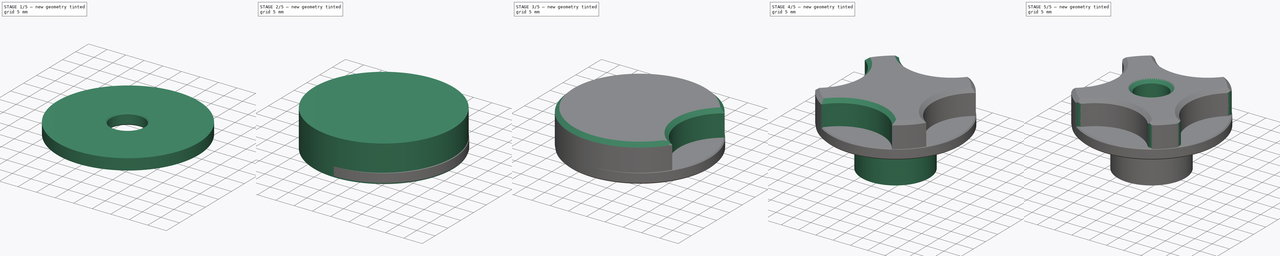
[diagram: build sequence overview — one tinted view per stage of 5, left to right]
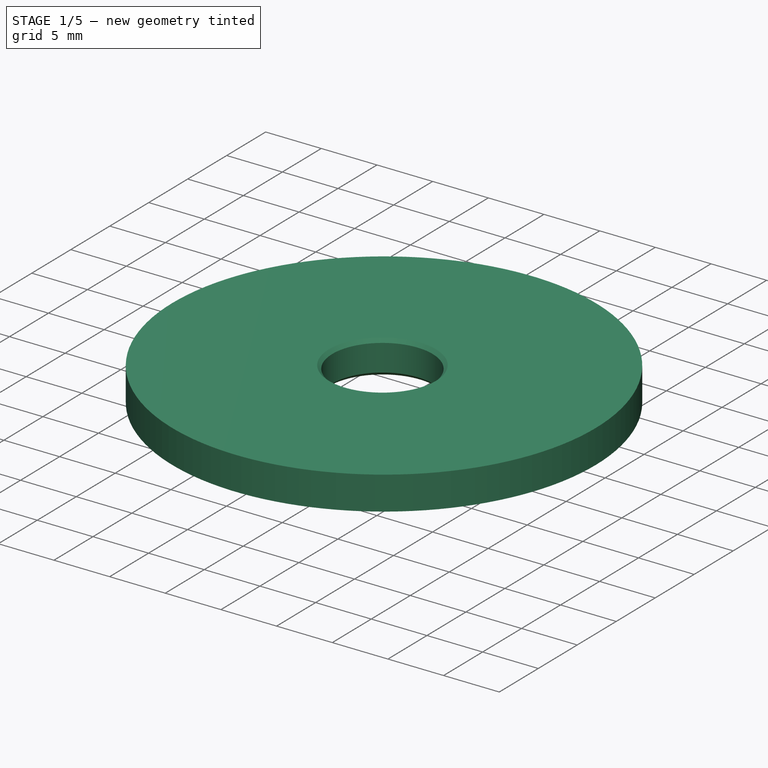
[diagram: stage 1 of 5 — iso view after this stage's code; geometry added in this stage tinted green]
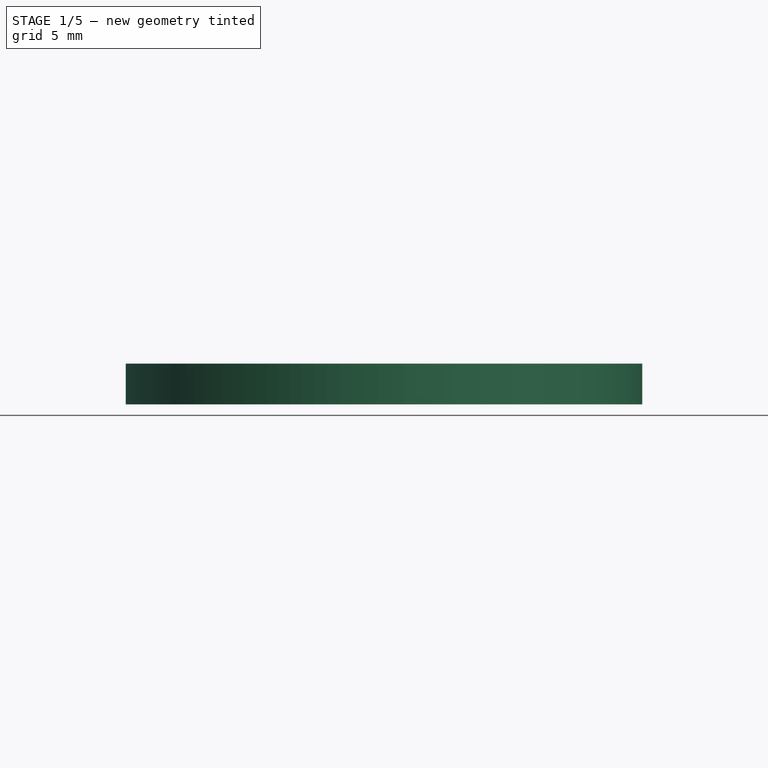
[diagram: stage 1 of 5 — front view after this stage's code; geometry added in this stage tinted green]
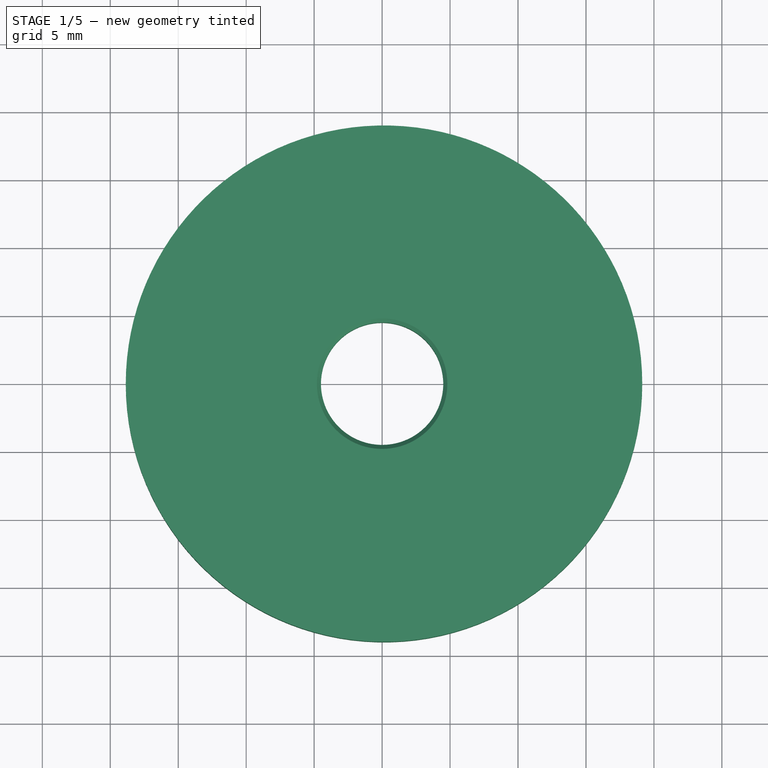
[diagram: stage 1 of 5 — top view after this stage's code; geometry added in this stage tinted green]
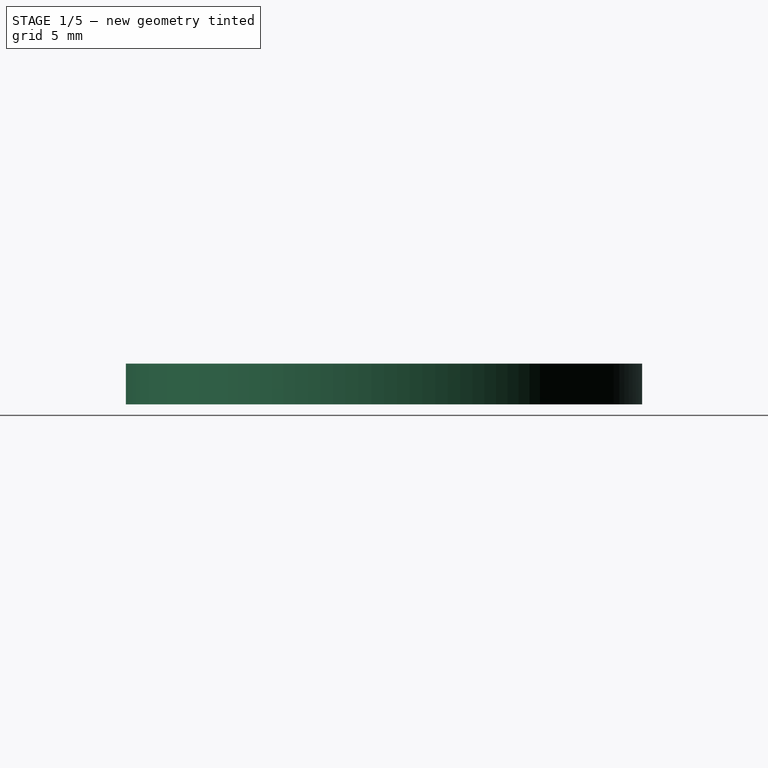
[diagram: stage 1 of 5 — right view after this stage's code; geometry added in this stage tinted green]
FCSTD DOCUMENT  (FreeCAD 0.21R33383 (Git))
Label: m8 - knob
License: All rights reserved
LicenseURL: https://en.wikipedia.org/wiki/All_rights_reserved
objects: Sketcher::SketchObject×8, PartDesign::Chamfer×6, PartDesign::Pocket×5, PartDesign::Pad×3, PartDesign::Body×2, PartDesign::PolarPattern×1, PartDesign::Fillet×1
note: 41 computed .brp shape members not serialized (recipe doc carries the construction recipe); baked Part::Feature solids carry a one-line shape summary decoded from their .brp

FEATURE [PartDesign::Body] Body015  label="Knob"
  Group = -> [Sketch071,Pad026,Chamfer033,Chamfer032,Sketch072,Pocket044,Chamfer034,PolarPattern002,Sketch073,Pad027,Sketch074,Pocket045,Sketch075,Pocket046,Chamfer035,Fillet008]
  Origin = -> Origin015
  Tip = -> Fillet008
FEATURE [Sketcher::SketchObject] Sketch068
  FullyConstrained = false
  MapMode = 5
  Support = -> [XY_Plane014]
  sketch-geometry (1):
    g0: Circle CenterX=0.140173 CenterY=0 CenterZ=0 NormalX=0 NormalY=0 NormalZ=1 AngleXU=0 Radius=19
  constraints (2):
    c: PointOnObject(g0,g-1)
    c: Diameter(g0) = 38
FEATURE [PartDesign::Pad] Pad025
  Direction = (1,1,1)
  Length = 3
  Length2 = 100
  Profile = -> Sketch068
  Type = 0
FEATURE [Sketcher::SketchObject] Sketch069
  FullyConstrained = true
  MapMode = 5
  Placement = pos=(0,0,0) rot=(1,0,0;3.14159rad)
  Support = -> [Pad025]
  sketch-geometry (1):
    g0: Circle CenterX=0 CenterY=0 CenterZ=0 NormalX=0 NormalY=0 NormalZ=1 AngleXU=0 Radius=4.5
  constraints (2):
    c: Coincident(g0,g-1)
    c: Diameter(g0) = 9
FEATURE [PartDesign::Pocket] Pocket042
  BaseFeature = -> Pad025
  Direction = (1,1,1)
  Length = 5
  Length2 = 100
  Profile = -> Sketch069
  Type = 1
FEATURE [PartDesign::Chamfer] Chamfer029
  Angle = 45
  Base = -> Pocket042 [Edge4,Edge5]
  BaseFeature = -> Pocket042
  ChamferType = 0
  FlipDirection = false
  Size = 0.3
  Size2 = 1
  SupportTransform = false
  UseAllEdges = false
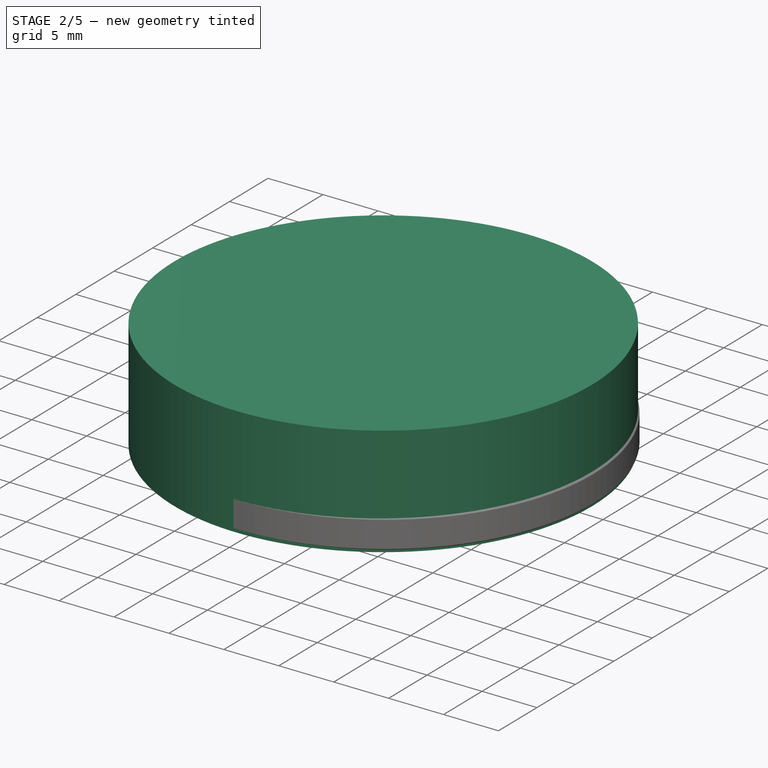
[diagram: stage 2 of 5 — iso view after this stage's code; geometry added in this stage tinted green]
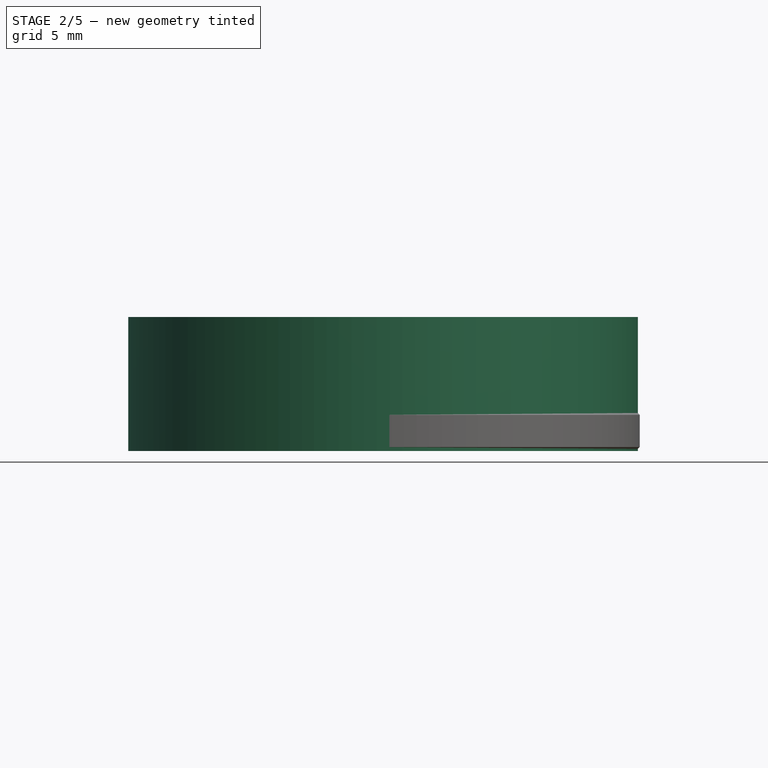
[diagram: stage 2 of 5 — front view after this stage's code; geometry added in this stage tinted green]
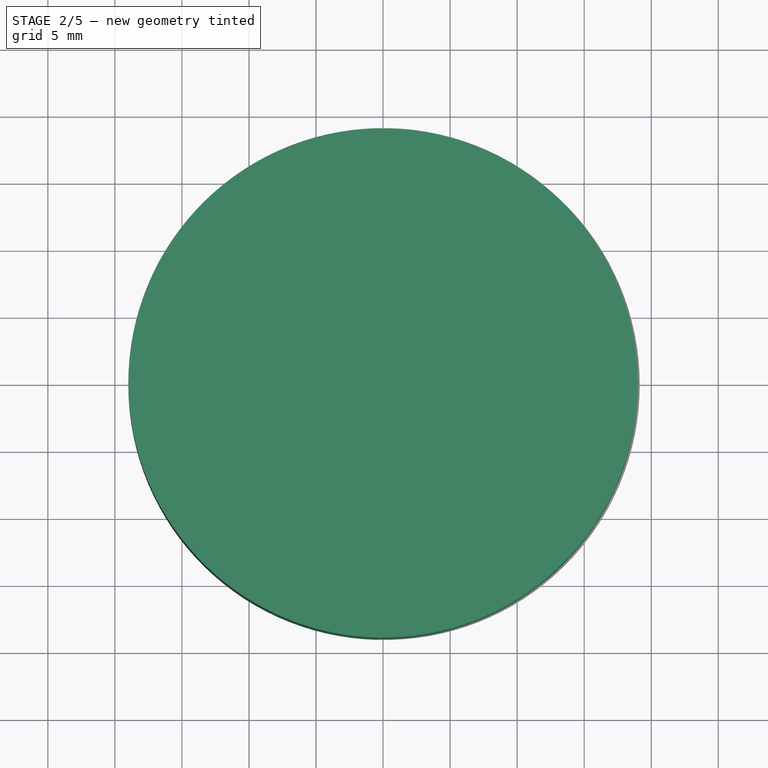
[diagram: stage 2 of 5 — top view after this stage's code; geometry added in this stage tinted green]
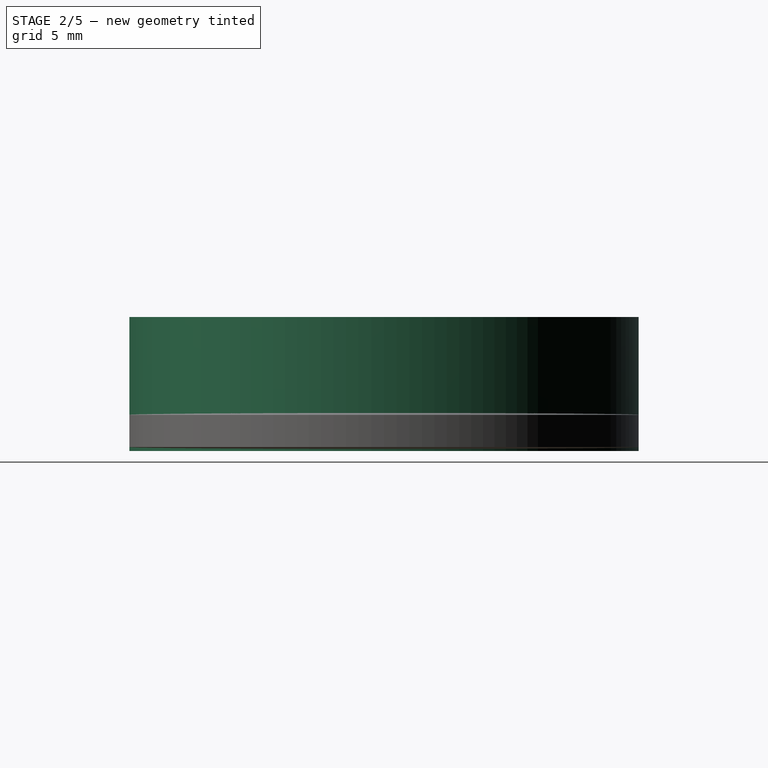
[diagram: stage 2 of 5 — right view after this stage's code; geometry added in this stage tinted green]
FEATURE [Sketcher::SketchObject] Sketch071
  FullyConstrained = true
  MapMode = 5
  Support = -> [XY_Plane015]
  sketch-geometry (1):
    g0: Circle CenterX=0 CenterY=0 CenterZ=0 NormalX=0 NormalY=0 NormalZ=1 AngleXU=0 Radius=19
  constraints (2):
    c: Coincident(g0,g-1)
    c: Diameter(g0) = 38
FEATURE [PartDesign::Pad] Pad026
  Direction = (1,1,1)
  Length = 10
  Length2 = 100
  Profile = -> Sketch071
  Type = 0
FEATURE [PartDesign::Chamfer] Chamfer030
  Angle = 45
  Base = -> Chamfer029 [Edge2,Edge6]
  BaseFeature = -> Chamfer029
  ChamferType = 0
  FlipDirection = false
  Size = 0.3
  Size2 = 1
  SupportTransform = false
  UseAllEdges = false
FEATURE [Sketcher::SketchObject] Sketch070
  FullyConstrained = true
  MapMode = 5
  Placement = pos=(0,0,3) rot=(0,0,1;0rad)
  Support = -> [Chamfer030]
  sketch-geometry (1):
    g0: Circle CenterX=0 CenterY=0 CenterZ=0 NormalX=0 NormalY=0 NormalZ=1 AngleXU=0 Radius=8.25
  constraints (2):
    c: Coincident(g0,g-1)
    c: Radius(g0) = 8.25
FEATURE [PartDesign::Pocket] Pocket043
  BaseFeature = -> Chamfer030
  Direction = (0,0,-1)
  Length = 1
  Length2 = 100
  Profile = -> Sketch070
  Type = 0
FEATURE [PartDesign::Body] Body014  label="Washer"
  Group = -> [Sketch068,Pad025,Sketch069,Pocket042,Chamfer029,Chamfer030,Sketch070,Pocket043]
  Origin = -> Origin014
  Tip = -> Pocket043
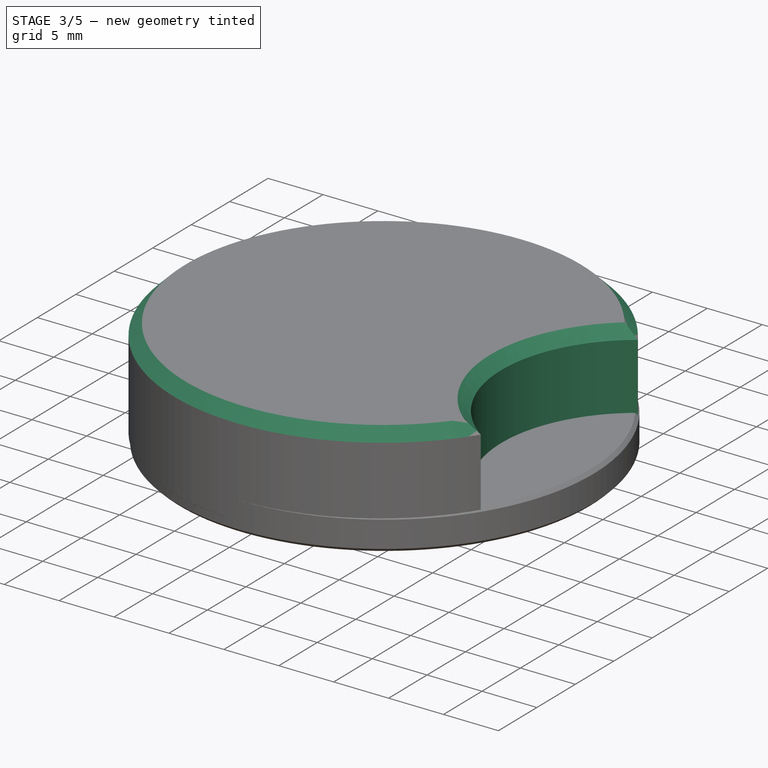
[diagram: stage 3 of 5 — iso view after this stage's code; geometry added in this stage tinted green]
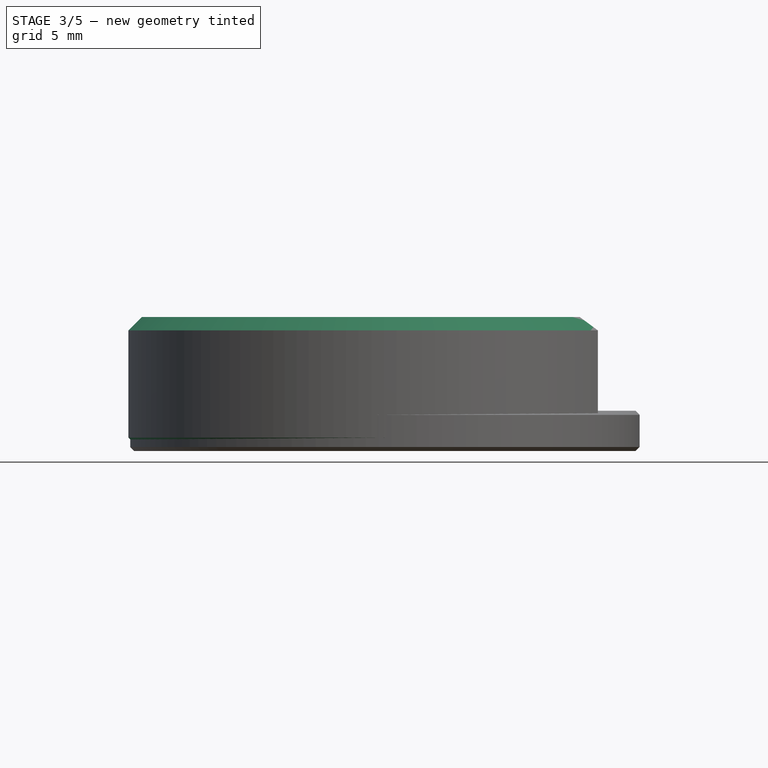
[diagram: stage 3 of 5 — front view after this stage's code; geometry added in this stage tinted green]
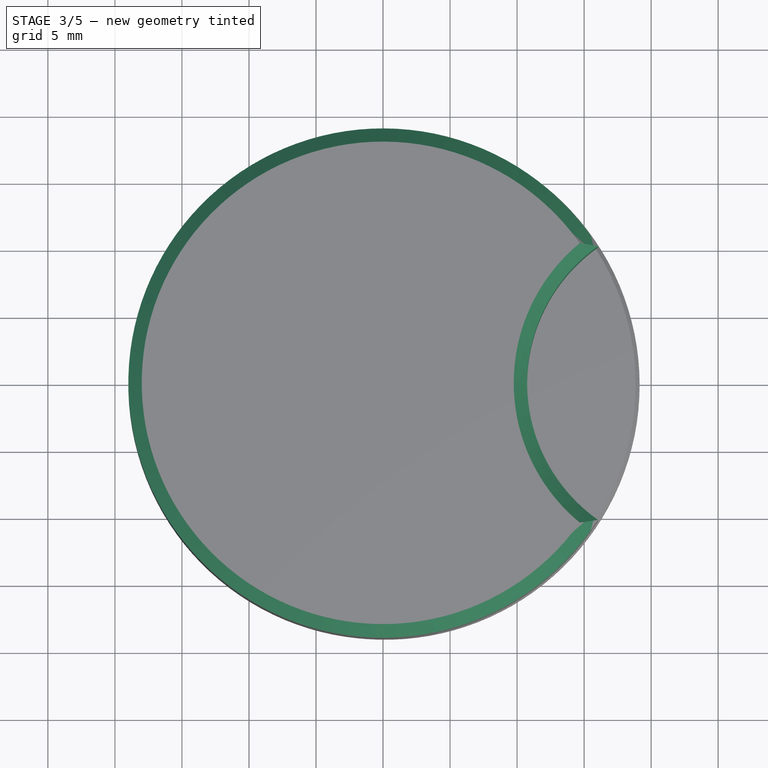
[diagram: stage 3 of 5 — top view after this stage's code; geometry added in this stage tinted green]
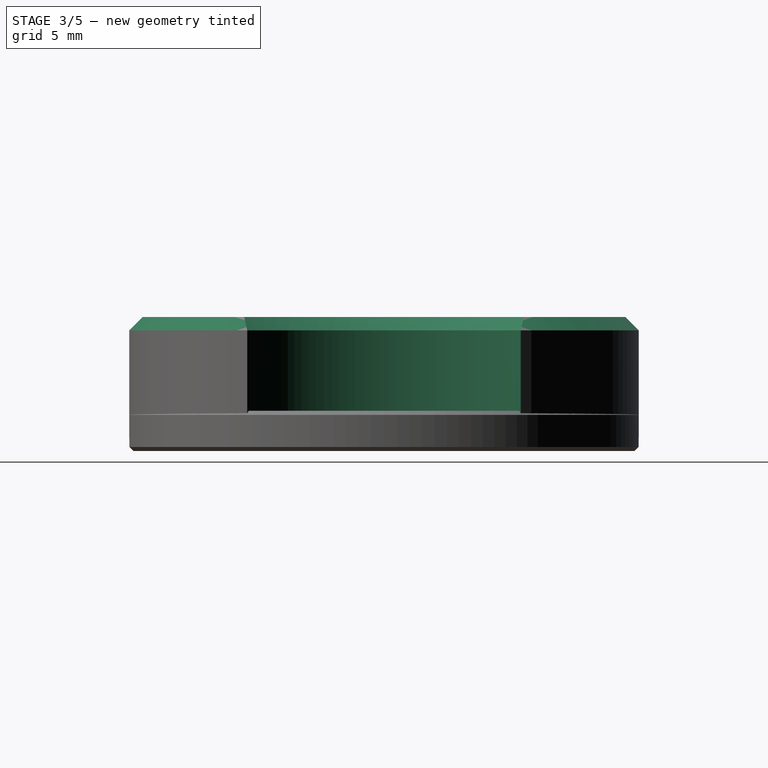
[diagram: stage 3 of 5 — right view after this stage's code; geometry added in this stage tinted green]
FEATURE [PartDesign::Chamfer] Chamfer033
  Angle = 45
  Base = -> Pad026 [Edge3]
  BaseFeature = -> Pad026
  ChamferType = 0
  FlipDirection = false
  Size = 1
  Size2 = 1
  SupportTransform = false
  UseAllEdges = false
FEATURE [PartDesign::Chamfer] Chamfer032
  Angle = 45
  Base = -> Chamfer033 [Edge3]
  BaseFeature = -> Chamfer033
  ChamferType = 0
  FlipDirection = false
  Size = 1
  Size2 = 1
  SupportTransform = false
  UseAllEdges = false
FEATURE [Sketcher::SketchObject] Sketch072
  ExternalGeometry = -> [Chamfer032]
  FullyConstrained = true
  MapMode = 5
  Support = -> [XY_Plane015]
  sketch-geometry (2):
    g0: LineSegment StartX=23.25 StartY=12.5 StartZ=0 EndX=23.25 EndY=-12.5 EndZ=0
    g1: ArcOfCircle CenterX=23.25 CenterY=-9e-16 CenterZ=0 NormalX=0 NormalY=0 NormalZ=1 AngleXU=0 Radius=12.5 StartAngle=1.5708 EndAngle=4.71239
  constraints (6):
    c: Perpendicular(g0,g1) = 1.5708
    c: Coincident(g1,g0)
    c: DistanceY(g0,g0) = 25
    c: Vertical(g0)
    c: DistanceY(g-1,g0) = 12.5
    c: DistanceX(g-1,g1) = 23.25
FEATURE [PartDesign::Pocket] Pocket044
  BaseFeature = -> Chamfer032
  Direction = (1,1,1)
  Length = 5
  Length2 = 100
  Profile = -> Sketch072
  Reversed = true
  Type = 1
FEATURE [PartDesign::Chamfer] Chamfer034
  Angle = 45
  Base = -> Pocket044 [Edge8,Edge10]
  BaseFeature = -> Pocket044
  ChamferType = 0
  FlipDirection = false
  Size = 1
  Size2 = 1
  SupportTransform = false
  UseAllEdges = false
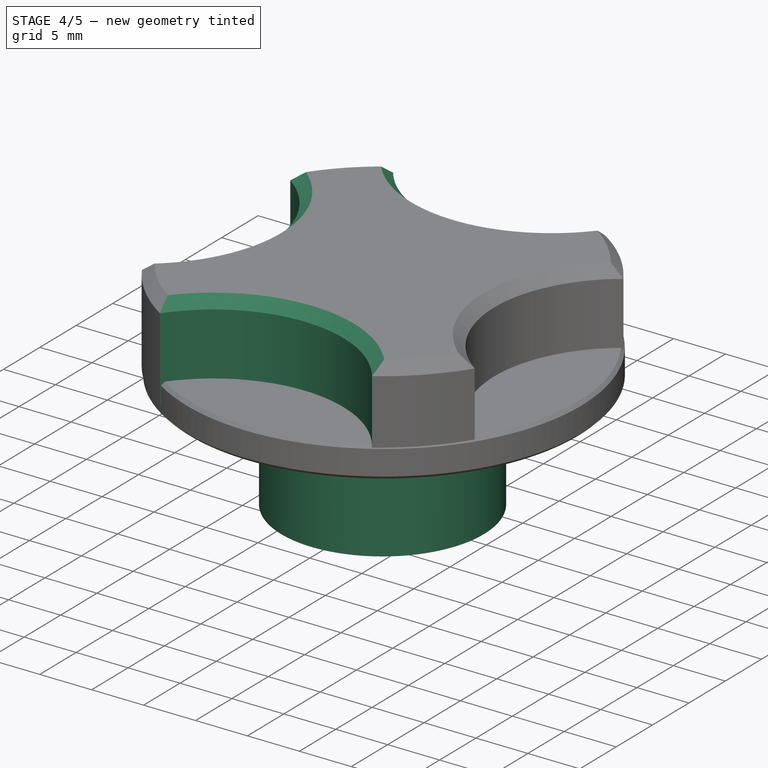
[diagram: stage 4 of 5 — iso view after this stage's code; geometry added in this stage tinted green]
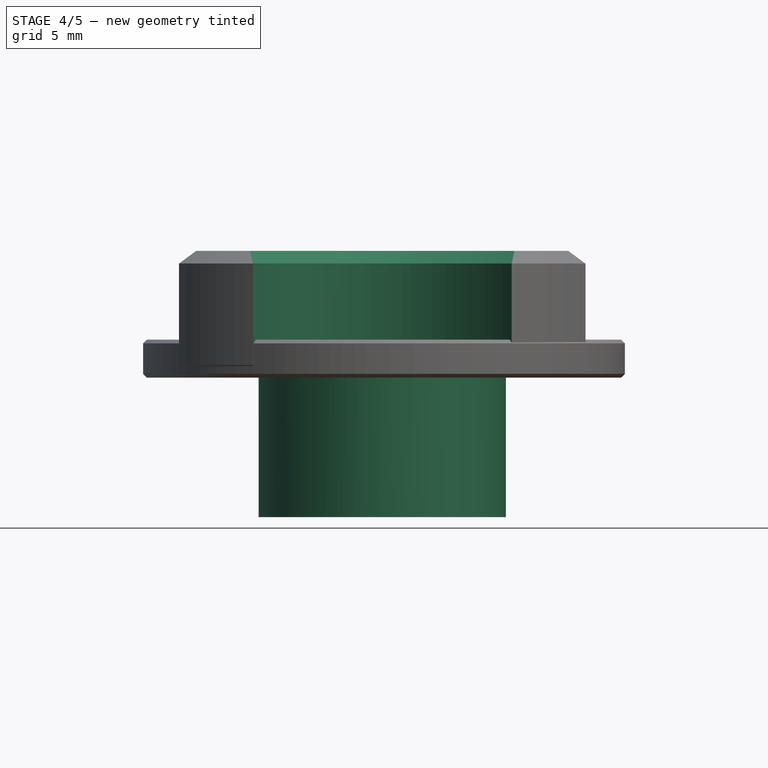
[diagram: stage 4 of 5 — front view after this stage's code; geometry added in this stage tinted green]
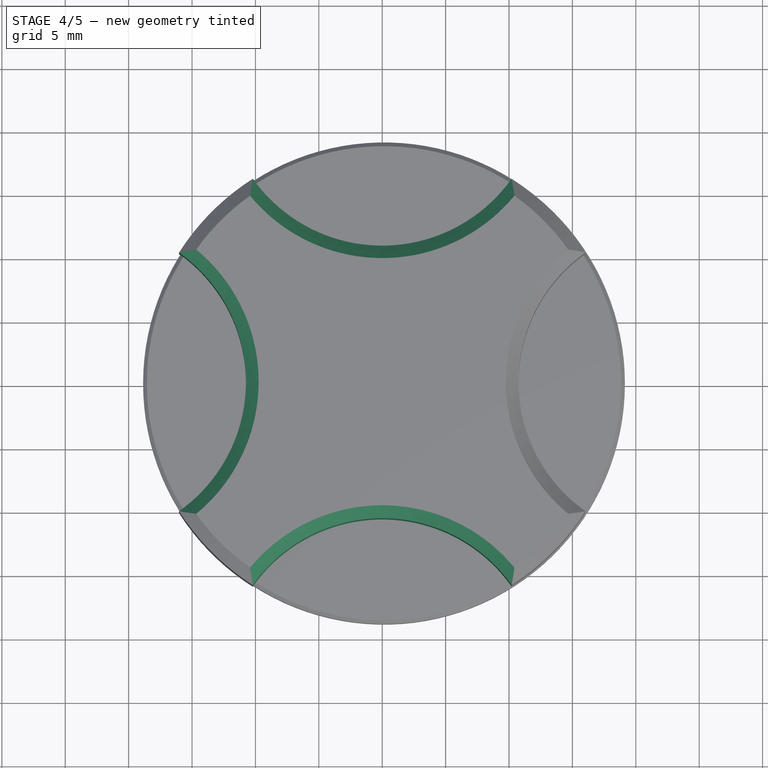
[diagram: stage 4 of 5 — top view after this stage's code; geometry added in this stage tinted green]
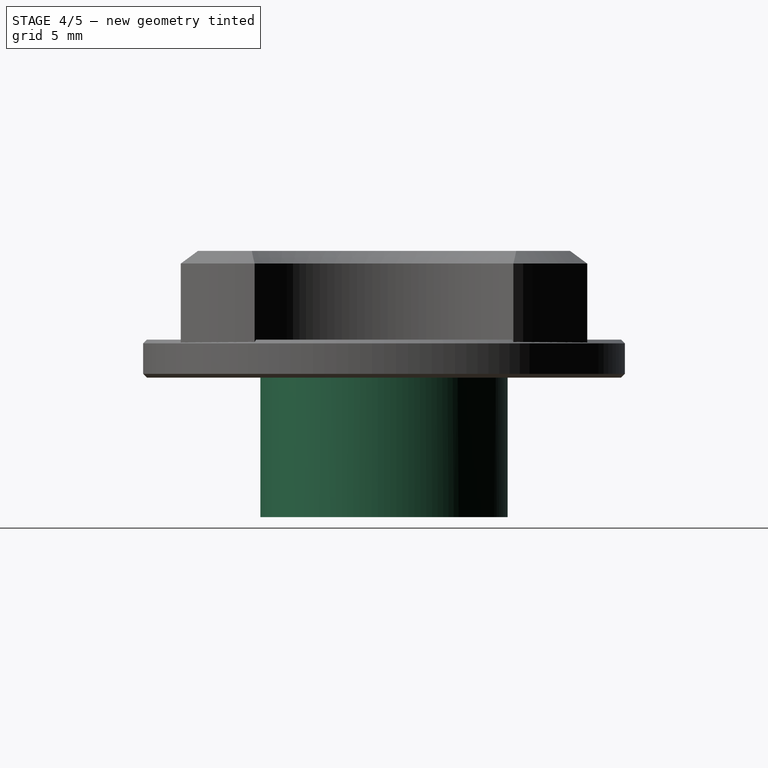
[diagram: stage 4 of 5 — right view after this stage's code; geometry added in this stage tinted green]
FEATURE [PartDesign::PolarPattern] PolarPattern002
  Angle = 360
  Axis = -> Sketch072 [N_Axis]
  BaseFeature = -> Chamfer034
  Occurrences = 4
  Originals = -> [Pocket044,Chamfer034]
FEATURE [Sketcher::SketchObject] Sketch073
  FullyConstrained = true
  MapMode = 5
  Placement = pos=(0,0,0) rot=(1,0,0;3.14159rad)
  Support = -> [PolarPattern002]
  sketch-geometry (1):
    g0: Circle CenterX=0 CenterY=0 CenterZ=0 NormalX=0 NormalY=0 NormalZ=1 AngleXU=0 Radius=9.75
  constraints (2):
    c: Coincident(g0,g-1)
    c: Radius(g0) = 9.75
FEATURE [PartDesign::Pad] Pad027
  BaseFeature = -> PolarPattern002
  Direction = (1,1,1)
  Length = 11
  Length2 = 100
  Profile = -> Sketch073
  Type = 0
FEATURE [Sketcher::SketchObject] Sketch074
  FullyConstrained = false
  MapMode = 5
  Placement = pos=(0,0,-11) rot=(1,0,0;3.14159rad)
  Support = -> [Pad027]
  sketch-geometry (7):
    g0: LineSegment StartX=6.81071 StartY=-3.21462 StartZ=0 EndX=6.18929 EndY=4.29094 EndZ=0
    g1: LineSegment StartX=6.18929 StartY=4.29094 StartZ=0 EndX=-0.621415 EndY=7.50555 EndZ=0
    g2: LineSegment StartX=-0.621415 StartY=7.50555 StartZ=0 EndX=-6.81071 EndY=3.21462 EndZ=0
    g3: LineSegment StartX=-6.81071 StartY=3.21462 StartZ=0 EndX=-6.18929 EndY=-4.29094 EndZ=0
    g4: LineSegment StartX=-6.18929 StartY=-4.29094 StartZ=0 EndX=0.621415 EndY=-7.50555 EndZ=0
    g5: LineSegment StartX=0.621415 StartY=-7.50555 StartZ=0 EndX=6.81071 EndY=-3.21462 EndZ=0
    g6: Circle CenterX=0 CenterY=0 CenterZ=0 NormalX=0 NormalY=0 NormalZ=1 AngleXU=0 Radius=7.53123
  constraints (15):
    c: Coincident(g0,g1)
    c: Coincident(g1,g2)
    c: Coincident(g2,g3)
    c: Coincident(g3,g4)
    c: Coincident(g4,g5)
    c: Coincident(g5,g0)
    c: Equal(g0, g1-g5) x5
    c: PointOnObject(g0,g6)
    c: PointOnObject(g1,g6)
    c: PointOnObject(g2,g6)
    c: PointOnObject(g3,g6)
    c: PointOnObject(g4,g6)
    c: PointOnObject(g5,g6)
    c: Coincident(g6,g-1)
    c: DistanceX(g3,g0) = 13
FEATURE [PartDesign::Pocket] Pocket045
  BaseFeature = -> Pad027
  Direction = (1,1,1)
  Length = 6.5
  Length2 = 100
  Profile = -> Sketch074
  Type = 0
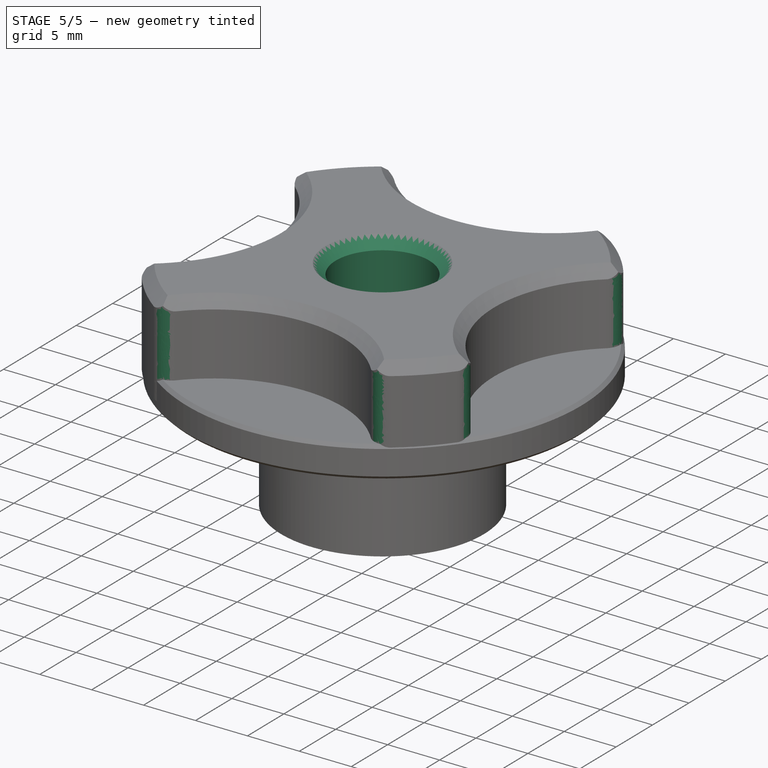
[diagram: stage 5 of 5 — iso view after this stage's code; geometry added in this stage tinted green]
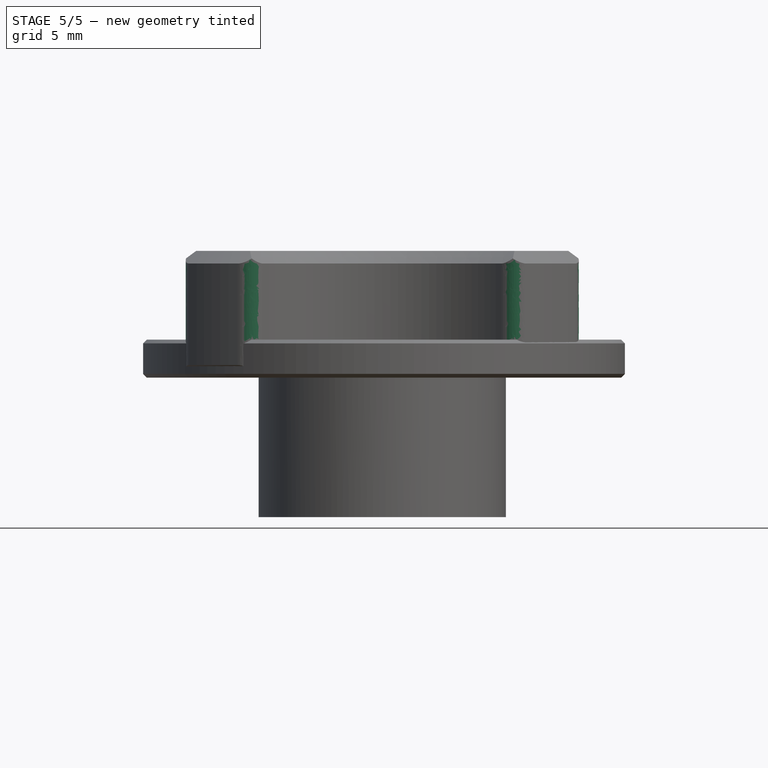
[diagram: stage 5 of 5 — front view after this stage's code; geometry added in this stage tinted green]
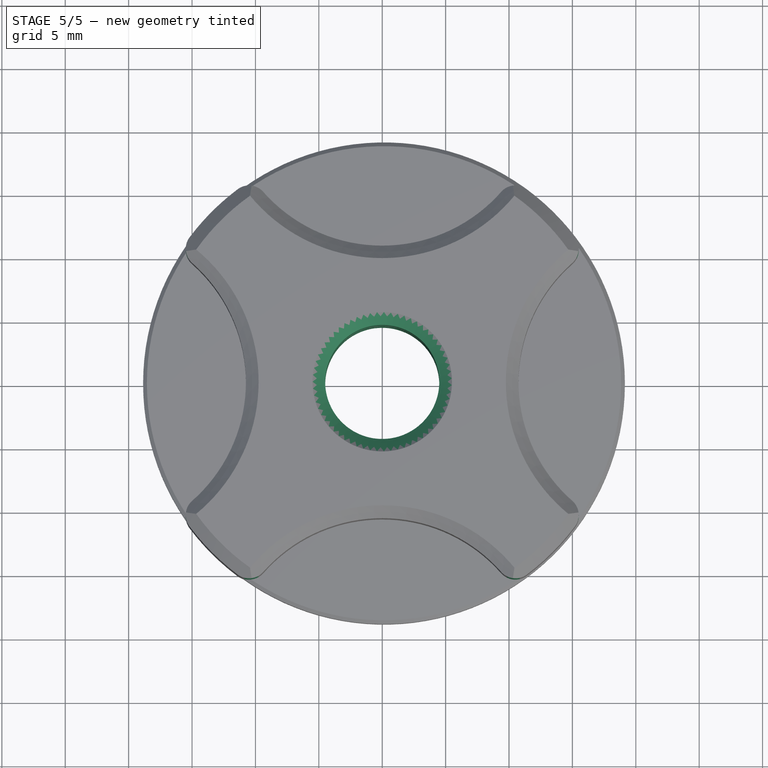
[diagram: stage 5 of 5 — top view after this stage's code; geometry added in this stage tinted green]
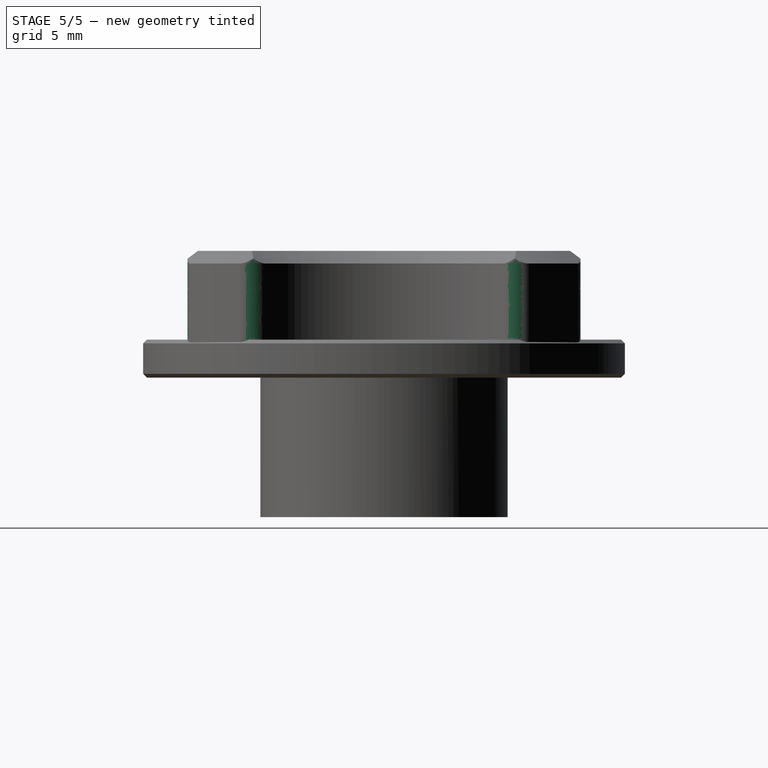
[diagram: stage 5 of 5 — right view after this stage's code; geometry added in this stage tinted green]
FEATURE [Sketcher::SketchObject] Sketch075
  FullyConstrained = true
  MapMode = 5
  Placement = pos=(0,0,-11) rot=(1,0,0;3.14159rad)
  Support = -> [Pocket045]
  sketch-geometry (1):
    g0: Circle CenterX=0 CenterY=0 CenterZ=0 NormalX=0 NormalY=0 NormalZ=1 AngleXU=0 Radius=4.5
  constraints (2):
    c: Coincident(g0,g-1)
    c: Radius(g0) = 4.5
FEATURE [PartDesign::Pocket] Pocket046
  BaseFeature = -> Pocket045
  Direction = (1,1,1)
  Length = 5
  Length2 = 100
  Profile = -> Sketch075
  Type = 1
FEATURE [PartDesign::Chamfer] Chamfer035
  Angle = 45
  Base = -> Pocket046 [Edge58]
  BaseFeature = -> Pocket046
  ChamferType = 0
  FlipDirection = false
  Size = 1
  Size2 = 1
  SupportTransform = false
  UseAllEdges = false
FEATURE [PartDesign::Fillet] Fillet008
  Base = -> Chamfer035 [Edge36,Edge31,Edge32,Edge34,Edge38,Edge42,Edge44,Edge40]
  BaseFeature = -> Chamfer035
  Radius = 1.5
  SupportTransform = false
  UseAllEdges = false
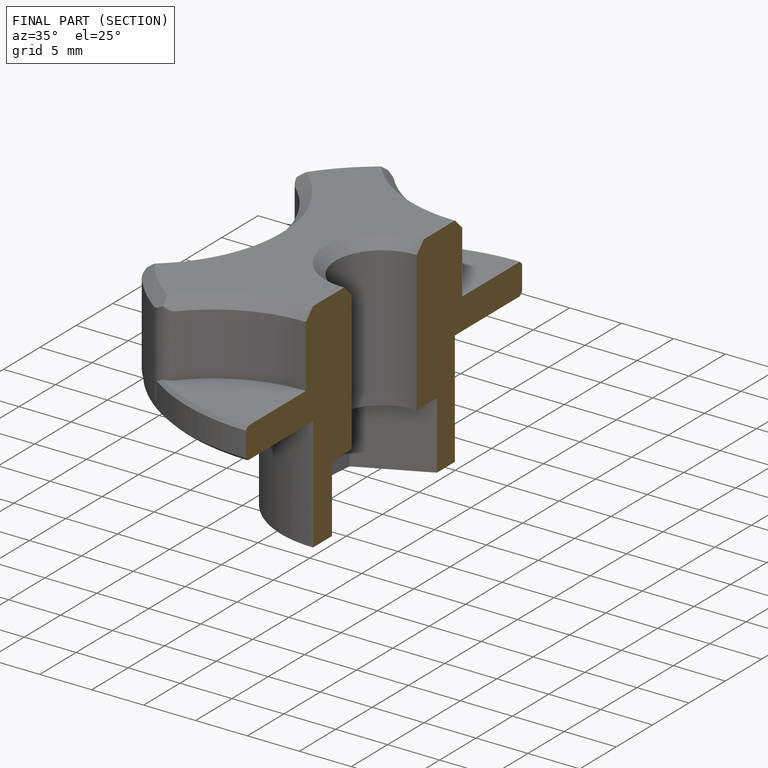
[diagram: finished part — half-section view (interior)]
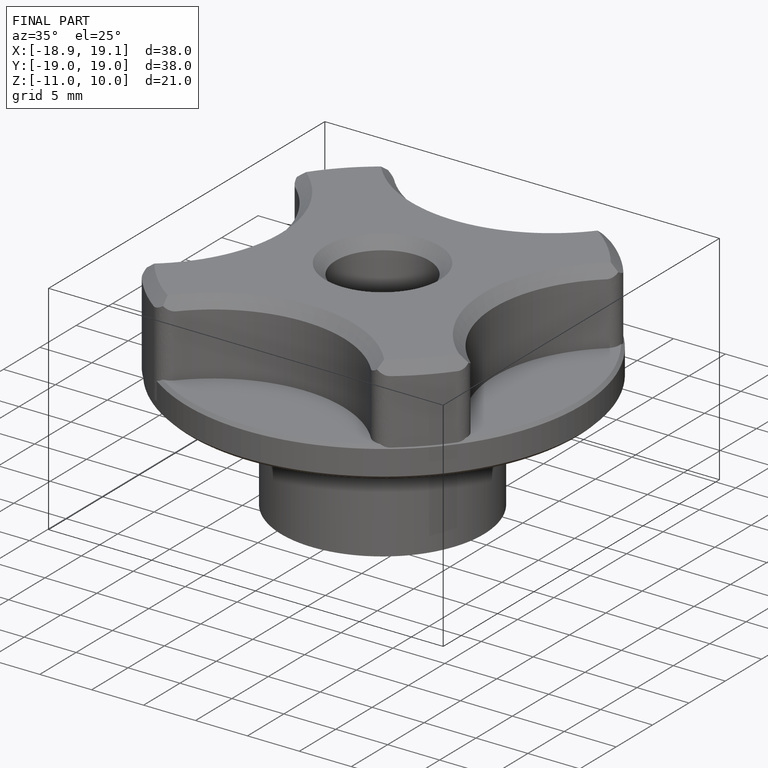
[diagram: finished part — iso view with bounding-box wireframe]
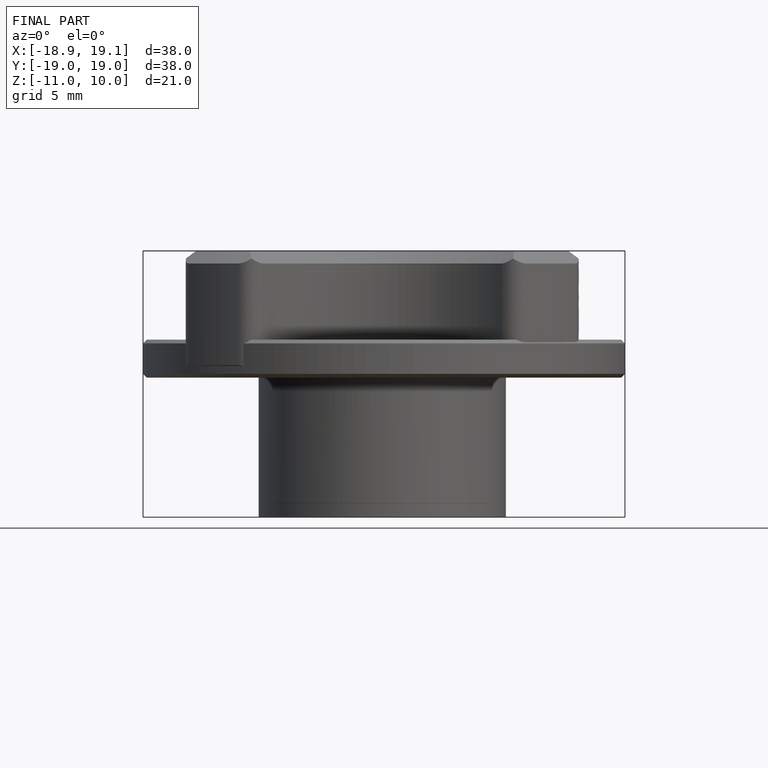
[diagram: finished part — front view with bounding-box wireframe]
